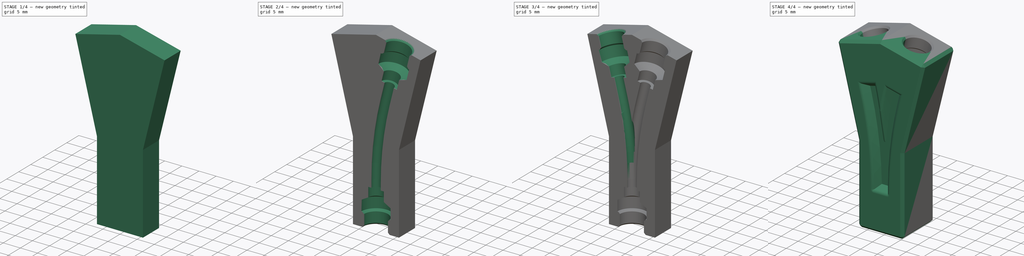
[diagram: build sequence overview — one tinted view per stage of 4, left to right]
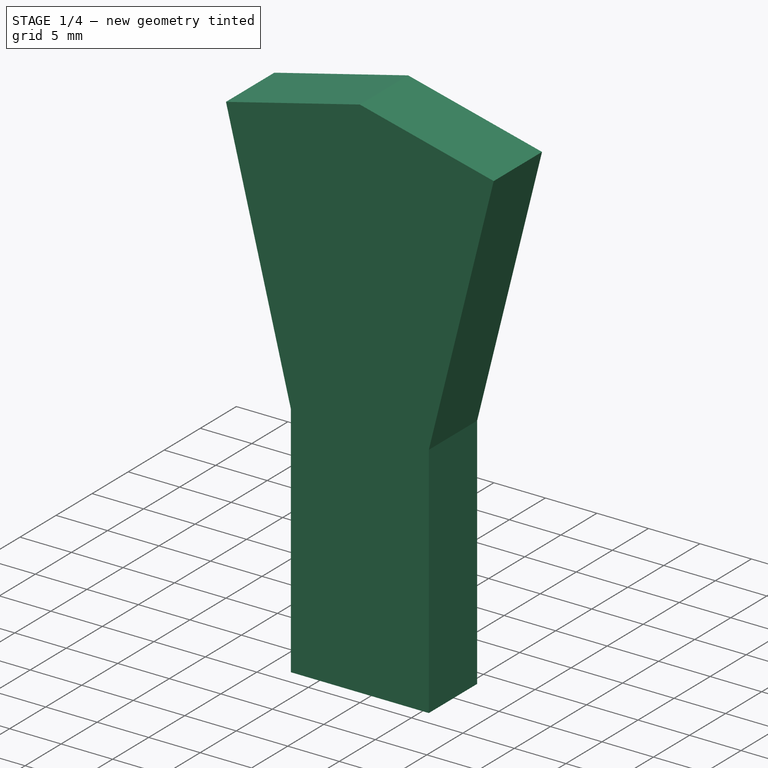
[diagram: stage 1 of 4 — iso view after this stage's code; geometry added in this stage tinted green]
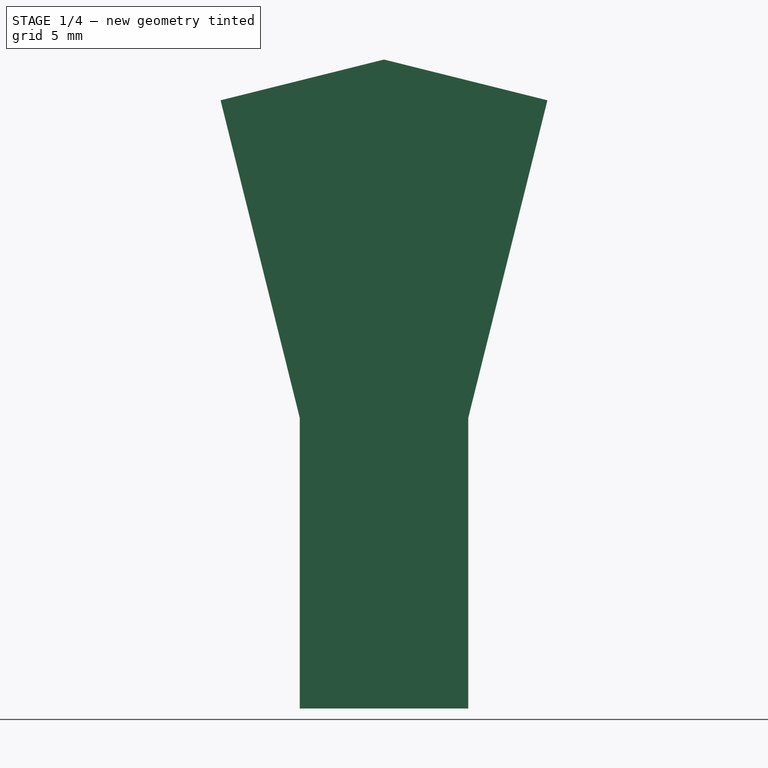
[diagram: stage 1 of 4 — front view after this stage's code; geometry added in this stage tinted green]
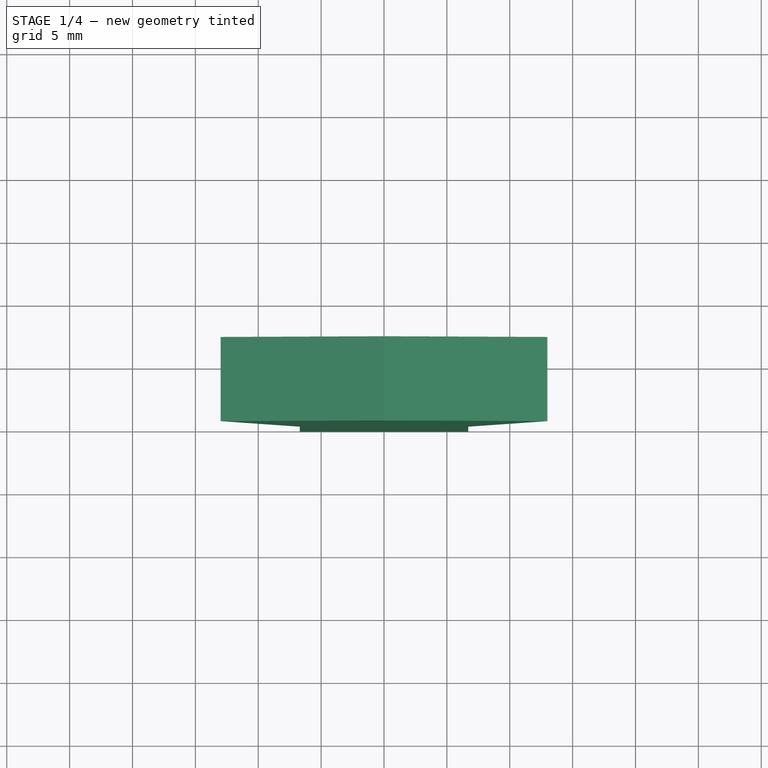
[diagram: stage 1 of 4 — top view after this stage's code; geometry added in this stage tinted green]
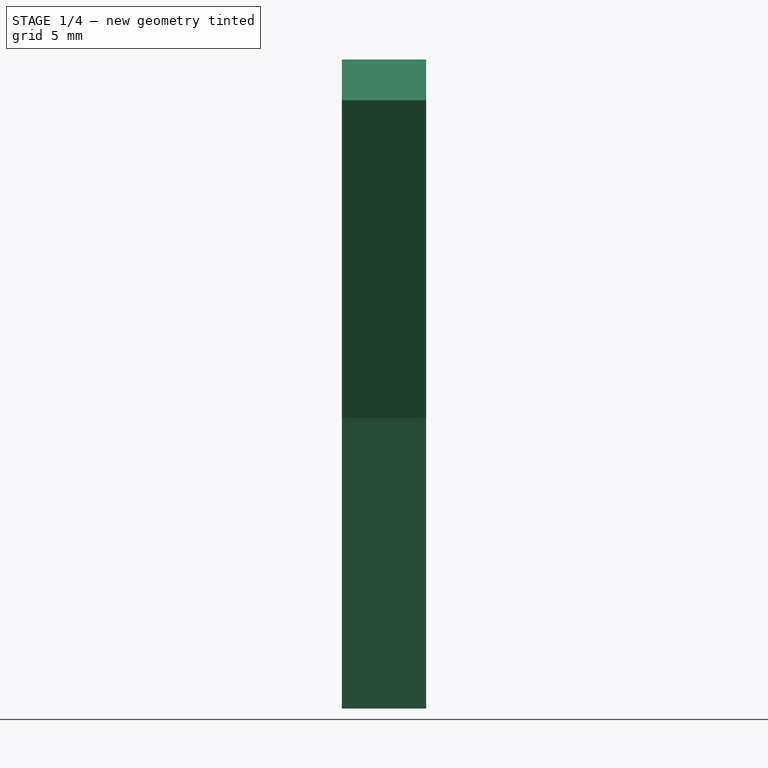
[diagram: stage 1 of 4 — right view after this stage's code; geometry added in this stage tinted green]
FCSTD DOCUMENT  (FreeCAD 1.0R39109 (Git))
Label: Y splitter
License: All rights reserved
objects: Sketcher::SketchObject×8, PartDesign::SubShapeBinder×6, App::Link×3, PartDesign::Pad×3, PartDesign::Body×2, PartDesign::Boolean×2, PartDesign::Pocket×2, PartDesign::Mirrored×2, PartDesign::Fillet×2, Part::MultiFuse×1, PartDesign::SubtractivePipe×1, PartDesign::Chamfer×1
note: 60 computed .brp shape members not serialized (recipe doc carries the construction recipe); baked Part::Feature solids carry a one-line shape summary decoded from their .brp
EXTERNAL_REF file=collet socket.FCStd obj=Cut

FEATURE [Sketcher::SketchObject] Sketch004
  ArcFitTolerance = 1e-06
  AttachmentSupport = -> [XZ_Plane001]
  FullyConstrained = true
  MakeInternals = false
  MapMode = 5
  Placement = pos=(0,0,0) rot=(1,0,0;1.5708rad)
  sketch-geometry (4):
    g0: ArcOfCircle CenterX=11.0191 CenterY=12 CenterZ=0 NormalX=0 NormalY=0 NormalZ=1 AngleXU=0 Radius=9.61914 StartAngle=2.75732 EndAngle=3.14159
    g1: ArcOfCircle CenterX=26.5657 CenterY=5.71338 CenterZ=0 NormalX=0 NormalY=0 NormalZ=1 AngleXU=0 Radius=26.3886 StartAngle=2.61799 EndAngle=2.75732
    g2: LineSegment [constr] StartX=1.4 StartY=12 StartZ=0 EndX=2.10151 EndY=15.6061 EndZ=0
    g3: LineSegment [constr] StartX=2.10151 StartY=15.6061 StartZ=0 EndX=3.71243 EndY=18.9077 EndZ=0
  constraints (8):
    c: Tangent(g0,g-5) = 1.5708
    c: Tangent(g1,g-6) = 1.5708
    c: Tangent(g0,g1) = -1.5708
    c: Coincident(g2,g0)
    c: Coincident(g2,g0)
    c: Coincident(g3,g0)
    c: Coincident(g3,g1)
    c: Equal(g3,g2)
FEATURE [Sketcher::SketchObject] Sketch005
  ArcFitTolerance = 1e-06
  AttachmentSupport = -> [XZ_Plane001]
  FullyConstrained = true
  MakeInternals = false
  MapMode = 5
  Placement = pos=(0,0,0) rot=(1,0,0;1.5708rad)
  sketch-geometry (4):
    g0: ArcOfCircle CenterX=-26.5658 CenterY=5.71328 CenterZ=0 NormalX=0 NormalY=0 NormalZ=1 AngleXU=0 Radius=26.3888 StartAngle=0.384273 EndAngle=0.523599
    g1: ArcOfCircle CenterX=-11.0191 CenterY=12 CenterZ=0 NormalX=0 NormalY=0 NormalZ=1 AngleXU=0 Radius=9.61912 StartAngle=2e-16 EndAngle=0.384273
    g2: LineSegment [constr] StartX=-1.4 StartY=12 StartZ=0 EndX=-2.10151 EndY=15.6061 EndZ=0
    g3: LineSegment [constr] StartX=-2.10151 StartY=15.6061 StartZ=0 EndX=-3.71244 EndY=18.9077 EndZ=0
  constraints (9):
    c: Tangent(g1,g-3) = 1.5708
    c: Tangent(g0,g-4) = 1.5708
    c: Coincident(g0,g1)
    c: Tangent(g1,g0,g0) = -1.5708
    c: Coincident(g2,g1)
    c: Coincident(g2,g0)
    c: Coincident(g3,g0)
    c: Coincident(g3,g0)
    c: Equal(g2,g3)
FEATURE [App::Link] Link  label="socket-Cut"
  LinkedObject = -> <external collet socket.FCStd>#Cut
FEATURE [PartDesign::SubShapeBinder] Binder
  BindCopyOnChange = 0
  BindMode = 0
  ClaimChildren = false
  Context = -> Body [Binder.]
  Fuse = false
  MakeFace = true
  OffsetFill = false
  OffsetIntersection = false
  OffsetJoinType = 0
  OffsetOpenResult = false
  PartialLoad = false
  Refine = true
  Relative = true
  Support = -> [Link[Face10]]
  _Version = 2
FEATURE [PartDesign::Pad] Pad
  Direction = (0,0,1)
  Length = 1
  Length2 = 10
  Profile = -> Binder
  Refine = true
  Suppressed = false
  Type = 0
FEATURE [Sketcher::SketchObject] Sketch
  ArcFitTolerance = 1e-06
  AttachmentSupport = -> [Pad]
  FullyConstrained = true
  MakeInternals = false
  MapMode = 5
  Placement = pos=(0,0,11) rot=(0,0,1;0rad)
  sketch-geometry (1):
    g0: Circle CenterX=0 CenterY=0 CenterZ=0 NormalX=0 NormalY=0 NormalZ=1 AngleXU=0 Radius=1.4
  constraints (2):
    c: Diameter(g0) = 2.8
    c: Coincident(g0,g-1)
FEATURE [PartDesign::Pad] Pad001
  BaseFeature = -> Pad
  Direction = (0,0,1)
  Length = 2
  Length2 = 10
  Profile = -> Sketch
  ReferenceAxis = -> Sketch [N_Axis]
  Refine = true
  Suppressed = false
  Type = 0
FEATURE [PartDesign::Body] Body
  AllowCompound = true
  Group = -> [Binder,Pad,Sketch,Pad001]
  Origin = -> Origin
  Tip = -> Pad001
FEATURE [Part::MultiFuse] Fusion  label="socket-cut-w-filament"
  Shapes = -> [Link,Body]
FEATURE [App::Link] Link001  label="socket-cut-w-filament001"
  LinkPlacement = pos=(-6.5,0,50) rot=(0,1,0;2.89725rad)
  LinkedObject = -> Fusion
  Placement = pos=(-6.5,0,50) rot=(0,1,0;2.89725rad)
FEATURE [App::Link] Link002  label="socket-cut-w-filament002"
  LinkPlacement = pos=(6.5,0,50) rot=(0,1,0;3.38594rad)
  LinkedObject = -> Fusion
  Placement = pos=(6.5,0,50) rot=(0,1,0;3.38594rad)
FEATURE [PartDesign::SubShapeBinder] Binder001
  BindCopyOnChange = 0
  BindMode = 0
  ClaimChildren = false
  Context = -> Body001 [Binder001.]
  Fuse = false
  MakeFace = true
  OffsetFill = false
  OffsetIntersection = false
  OffsetJoinType = 0
  OffsetOpenResult = false
  PartialLoad = false
  Refine = true
  Relative = true
  Support = -> [Fusion[Face1]]
  _Version = 2
FEATURE [PartDesign::SubShapeBinder] Binder002
  BindCopyOnChange = 0
  BindMode = 0
  ClaimChildren = false
  Context = -> Body001 [Binder002.]
  Fuse = false
  MakeFace = true
  OffsetFill = false
  OffsetIntersection = false
  OffsetJoinType = 0
  OffsetOpenResult = false
  PartialLoad = false
  Refine = true
  Relative = true
  Support = -> [Link001[Face1]]
  _Version = 2
FEATURE [PartDesign::SubShapeBinder] Binder003
  BindCopyOnChange = 0
  BindMode = 0
  ClaimChildren = false
  Context = -> Body001 [Binder003.]
  Fuse = false
  MakeFace = true
  OffsetFill = false
  OffsetIntersection = false
  OffsetJoinType = 0
  OffsetOpenResult = false
  PartialLoad = false
  Refine = true
  Relative = true
  Support = -> [Link002[Face1]]
  _Version = 2
FEATURE [Sketcher::SketchObject] Sketch003
  ArcFitTolerance = 1e-06
  AttachmentSupport = -> [XZ_Plane001]
  ExternalGeometry = -> [Binder002,Binder003,Binder001]
  FullyConstrained = true
  MakeInternals = false
  MapMode = 5
  Placement = pos=(0,0,0) rot=(1,0,0;1.5708rad)
  sketch-geometry (18):
    g0: LineSegment StartX=-12.9952 StartY=48.3703 StartZ=0 EndX=-10.3691 EndY=49.025 EndZ=0
    g1: LineSegment StartX=-10.3691 StartY=49.025 StartZ=0 EndX=-2.6261 EndY=50.9556 EndZ=0
    g2: LineSegment StartX=-2.6261 StartY=50.9556 StartZ=0 EndX=0 EndY=51.6103 EndZ=0
    g3: LineSegment StartX=0 StartY=51.6103 StartZ=0 EndX=2.6261 EndY=50.9556 EndZ=0
    g4: LineSegment StartX=2.6261 StartY=50.9556 StartZ=0 EndX=10.3691 EndY=49.025 EndZ=0
    g5: LineSegment StartX=10.3691 StartY=49.025 StartZ=0 EndX=12.9952 EndY=48.3703 EndZ=0
    g6: LineSegment [constr] StartX=10.3691 StartY=49.025 StartZ=0 EndX=10.3715 EndY=49.0347 EndZ=0
    g7: LineSegment [constr] StartX=2.6261 StartY=50.9556 StartZ=0 EndX=2.62852 EndY=50.9653 EndZ=0
    g8: LineSegment [constr] StartX=-2.6261 StartY=50.9556 StartZ=0 EndX=-2.62852 EndY=50.9653 EndZ=0
    g9: LineSegment [constr] StartX=-10.3691 StartY=49.025 StartZ=0 EndX=-10.3715 EndY=49.0347 EndZ=0
    g10: LineSegment StartX=-6.6965 StartY=0.01 StartZ=0 EndX=-3.99 EndY=0.01 EndZ=0
    g11: LineSegment StartX=-3.99 StartY=0.01 StartZ=0 EndX=3.99 EndY=0.01 EndZ=0
    g12: LineSegment StartX=3.99 StartY=0.01 StartZ=0 EndX=6.6965 EndY=0.01 EndZ=0
    g13: LineSegment [constr] StartX=3.99 StartY=0 StartZ=0 EndX=3.99 EndY=0.01 EndZ=0
    g14: LineSegment StartX=6.6965 StartY=0.01 StartZ=0 EndX=6.6965 EndY=23.1077 EndZ=0
    g15: LineSegment StartX=12.9952 StartY=48.3703 StartZ=0 EndX=6.6965 EndY=23.1077 EndZ=0
    g16: LineSegment StartX=-12.9952 StartY=48.3703 StartZ=0 EndX=-6.6965 EndY=23.1077 EndZ=0
    g17: LineSegment StartX=-6.6965 StartY=23.1077 StartZ=0 EndX=-6.6965 EndY=0.01 EndZ=0
  constraints (51):
    c: Coincident(g2,g1)
    c: PointOnObject(g2,g-2)
    c: Coincident(g3,g2)
    c: Coincident(g4,g3)
    c: Coincident(g5,g4)
    c: Parallel(g5,g4)
    c: Parallel(g4,g3)
    c: Parallel(g2,g1)
    c: Parallel(g1,g0)
    c: Coincident(g0,g1)
    c: Coincident(g6,g4)
    c: Coincident(g6,g-4)
    c: Coincident(g7,g3)
    c: Coincident(g7,g-4)
    c: Coincident(g8,g1)
    c: Coincident(g8,g-3)
    c: Coincident(g9,g0)
    c: Coincident(g9,g-3)
    c: Parallel(g1,g-3)
    c: Parallel(g4,g-4)
    c: Perpendicular(g1,g9)
    c: Perpendicular(g1,g8)
    c: Perpendicular(g4,g7)
    c: Perpendicular(g4,g6)
    c: Equal(g3,g5)
    c: Horizontal(g10)
    c: Coincident(g11,g10)
    c: Horizontal(g11)
    c: Coincident(g12,g11)
    c: Horizontal(g12)
    c: Vertical(g10,g-5)
    c: Vertical(g-5,g11)
    c: Equal(g12,g10)
    c: Equal(g10,g5)
    c: Coincident(g13,g-5)
    c: Coincident(g13,g11)
    c: Coincident(g14,g12)
    c: Vertical(g14)
    c: Coincident(g15,g5)
    c: Coincident(g15,g14)
    c: Perpendicular(g15,g5)
    c: Equal(g0,g2)
    c: Coincident(g16,g0)
    c: Coincident(g17,g16)
    c: Coincident(g17,g10)
    c: Vertical(g17)
    c: Equal(g17,g14)
    c: Equal(g13,g7)
    c: DistanceY(g13,g13) = 0.01
    c: Distance(g12,g12) = 2.7065
    c: Distance(g10,g12) = 13.393  'height'
FEATURE [Sketcher::SketchObject] Sketch006
  ArcFitTolerance = 1e-06
  ExternalGeometry = -> [Fusion]
  FullyConstrained = false
  MakeInternals = false
  Placement = pos=(0,0,0) rot=(1,0,0;1.5708rad)
  sketch-geometry (2):
    g0: ArcOfCircle CenterX=91.4 CenterY=13 CenterZ=0 NormalX=0 NormalY=0 NormalZ=1 AngleXU=0 Radius=90 StartAngle=2.87552 EndAngle=3.14159
    g1: LineSegment StartX=4.56711 StartY=36.6654 StartZ=0 EndX=5.75083 EndY=41.0086 EndZ=0
  constraints (3):
    c: Tangent(g0,g-4) = 1.5708
    c: Tangent(g1,g0) = 1.5708
    c: Radius(g0) = 90
FEATURE [PartDesign::Pad] Pad002
  Direction = (0,-1,2e-16)
  Length = 6.6965
  Length2 = 10
  Placement = pos=(0,0,0) rot=(1,0,0;1.5708rad)
  Profile = -> Sketch003
  ReferenceAxis = -> Sketch003 [N_Axis]
  Refine = true
  Reversed = true
  Suppressed = false
  Type = 0
  expr: Length = <<Sketch003>>.Constraints.height / 2
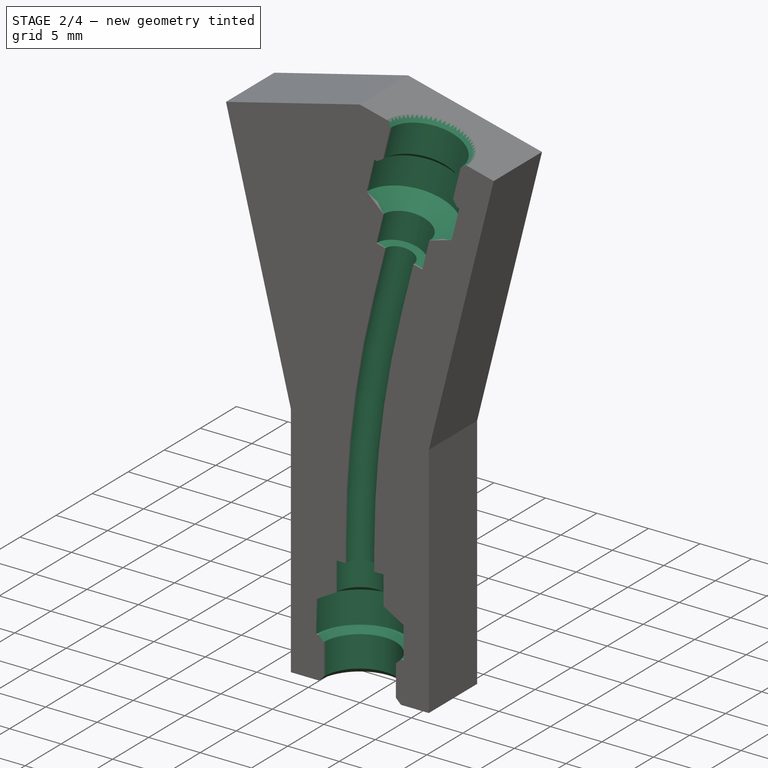
[diagram: stage 2 of 4 — iso view after this stage's code; geometry added in this stage tinted green]
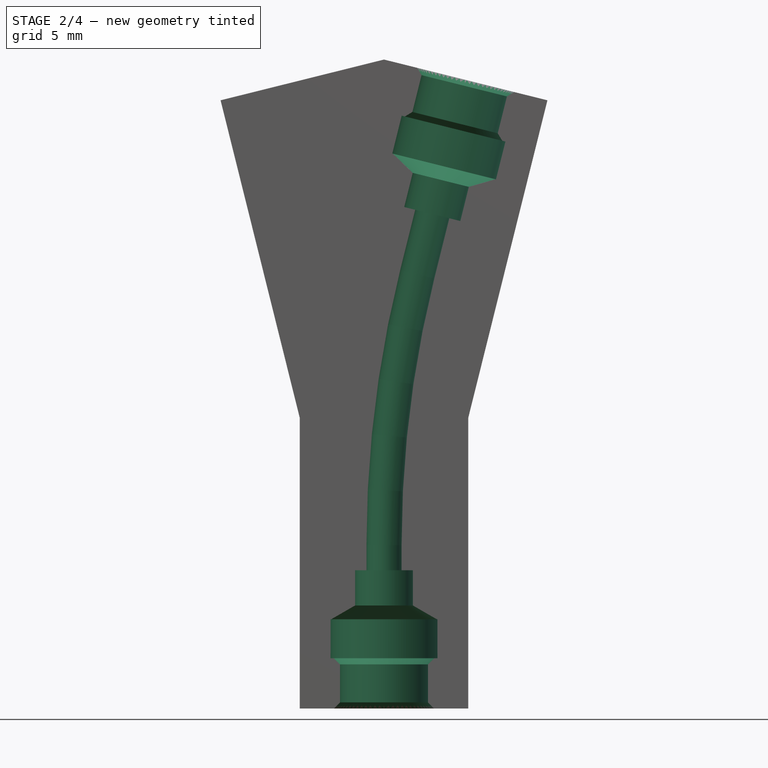
[diagram: stage 2 of 4 — front view after this stage's code; geometry added in this stage tinted green]
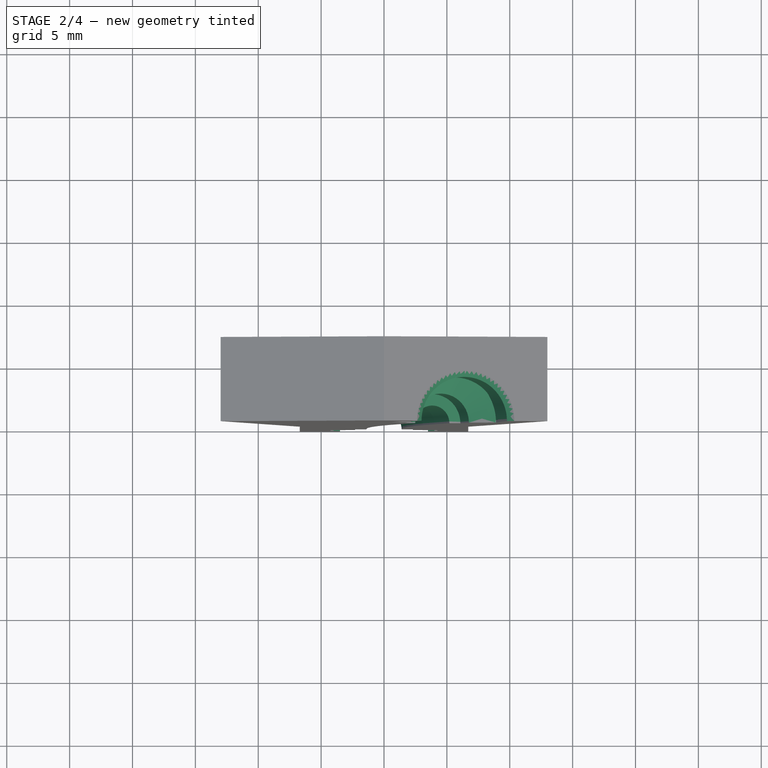
[diagram: stage 2 of 4 — top view after this stage's code; geometry added in this stage tinted green]
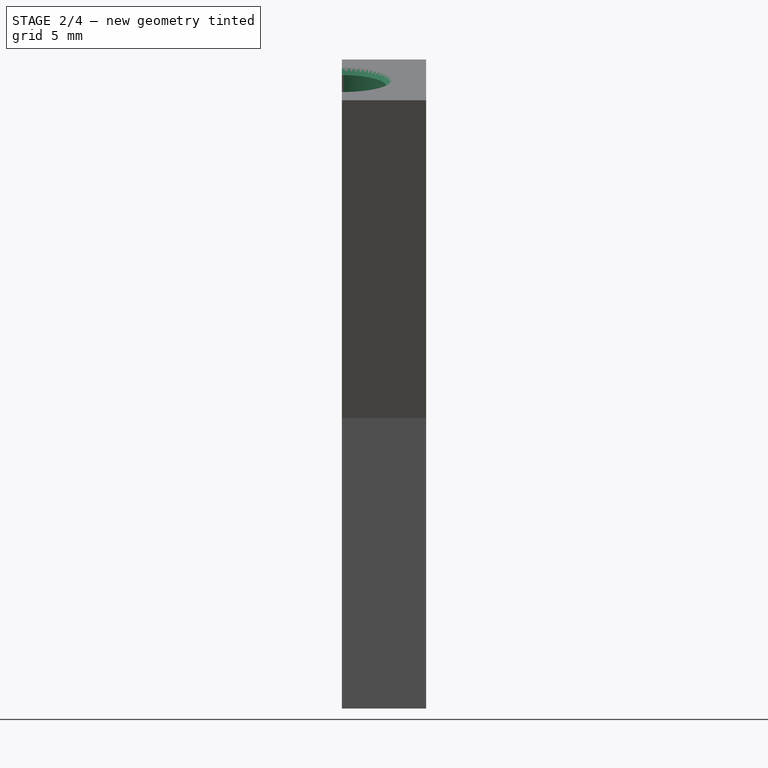
[diagram: stage 2 of 4 — right view after this stage's code; geometry added in this stage tinted green]
FEATURE [PartDesign::SubShapeBinder] Binder004
  BindCopyOnChange = 0
  BindMode = 0
  ClaimChildren = false
  Context = -> Body001 [Binder004.]
  Fuse = false
  MakeFace = true
  OffsetFill = false
  OffsetIntersection = false
  OffsetJoinType = 0
  OffsetOpenResult = false
  PartialLoad = false
  Refine = true
  Relative = true
  Support = -> [Fusion]
  _Version = 2
FEATURE [PartDesign::Boolean] Boolean
  BaseFeature = -> Pad002
  Group = -> [Binder004]
  Refine = true
  Suppressed = false
  Type = 1
  UsePlacement = true
FEATURE [PartDesign::SubShapeBinder] Binder005
  BindCopyOnChange = 0
  BindMode = 0
  ClaimChildren = false
  Context = -> Body001 [Binder005.]
  Fuse = false
  MakeFace = true
  OffsetFill = false
  OffsetIntersection = false
  OffsetJoinType = 0
  OffsetOpenResult = false
  PartialLoad = false
  Refine = true
  Relative = true
  Support = -> [Link002]
  _Version = 2
FEATURE [PartDesign::Boolean] Boolean001
  BaseFeature = -> Boolean
  Group = -> [Binder005]
  Refine = true
  Suppressed = false
  Type = 1
  UsePlacement = true
FEATURE [Sketcher::SketchObject] Sketch007
  ArcFitTolerance = 1e-06
  AttachmentSupport = -> [XZ_Plane001]
  ExternalGeometry = -> [Boolean001]
  FullyConstrained = true
  MakeInternals = false
  MapMode = 5
  Placement = pos=(0,0,0) rot=(1,0,0;1.5708rad)
  sketch-geometry (2):
    g0: ArcOfCircle CenterX=89.0171 CenterY=13 CenterZ=0 NormalX=0 NormalY=0 NormalZ=1 AngleXU=0 Radius=87.6171 StartAngle=2.89725 EndAngle=3.14159
    g1: LineSegment StartX=4.71343 StartY=37.0475 StartZ=0 EndX=4.0026 EndY=34.1965 EndZ=0
  constraints (4):
    c: Tangent(g0,g-4) = 1.5708
    c: Coincident(g1,g-3)
    c: Parallel(g-3,g1)
    c: Tangent(g1,g0) = -1.5708
FEATURE [PartDesign::SubtractivePipe] SubtractivePipe
  AuxilleryCurvelinear = true
  AuxillerySpineTangent = false
  BaseFeature = -> Boolean001
  Binormal = (0,0,0)
  Mode = 0
  Profile = -> Boolean001 [Face31]
  Refine = true
  Spine = -> Sketch007
  SpineTangent = false
  Suppressed = false
  Transformation = 0
  Transition = 0
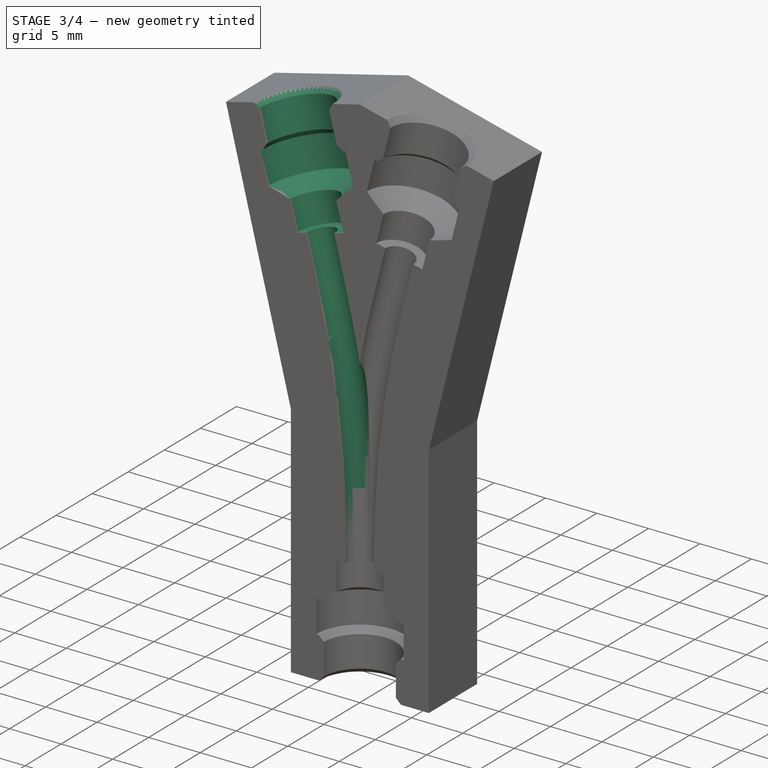
[diagram: stage 3 of 4 — iso view after this stage's code; geometry added in this stage tinted green]
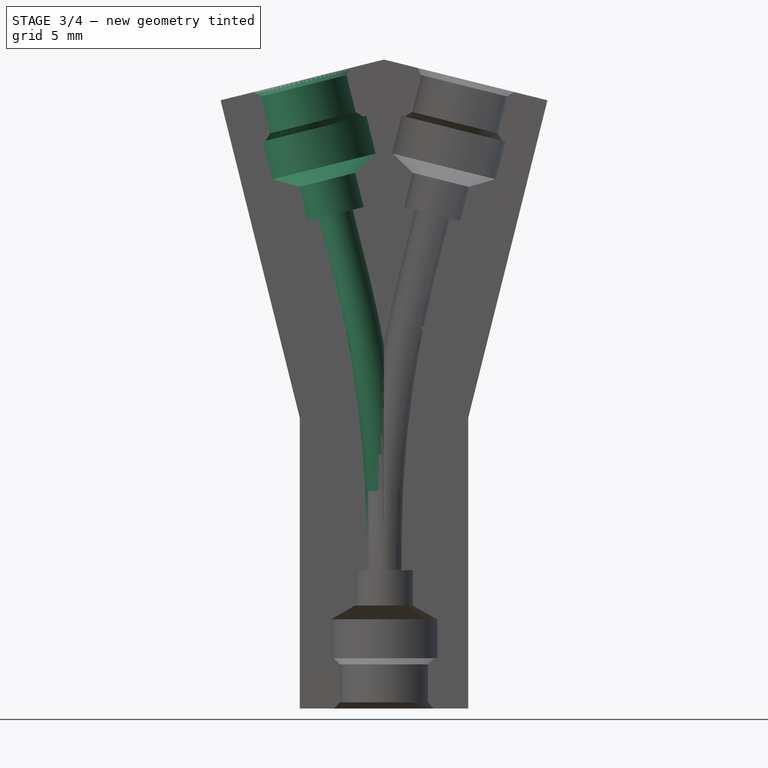
[diagram: stage 3 of 4 — front view after this stage's code; geometry added in this stage tinted green]
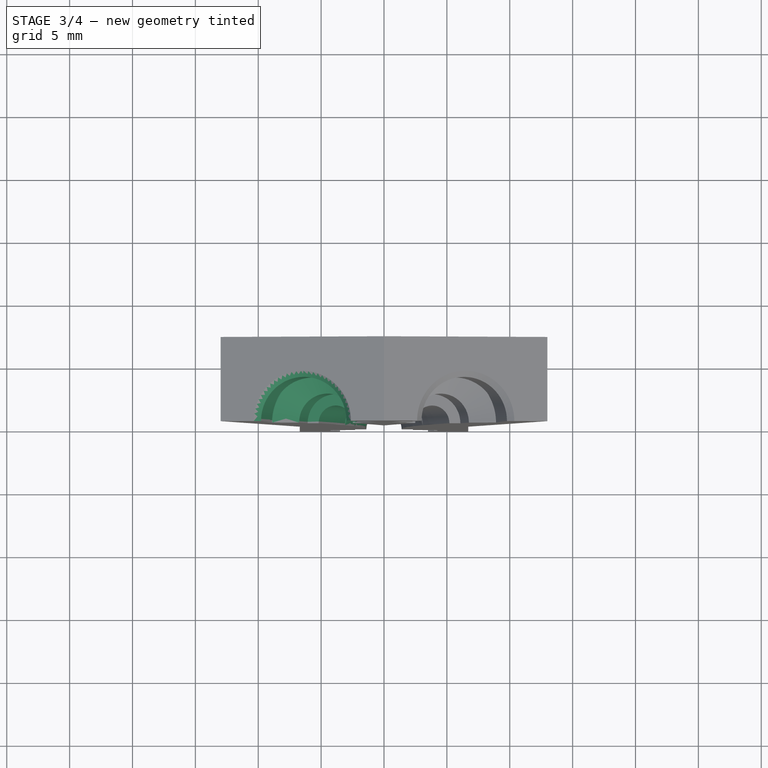
[diagram: stage 3 of 4 — top view after this stage's code; geometry added in this stage tinted green]
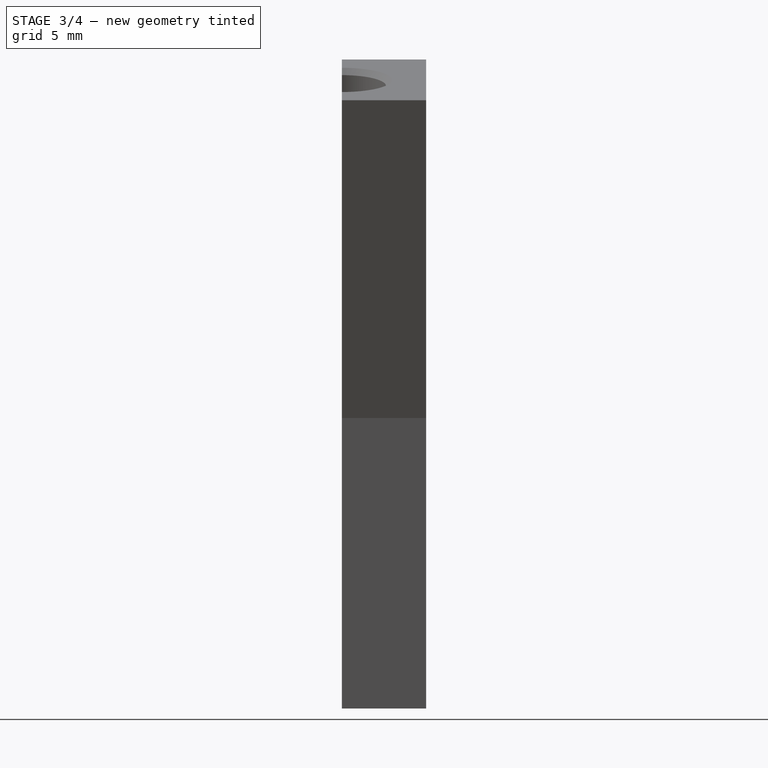
[diagram: stage 3 of 4 — right view after this stage's code; geometry added in this stage tinted green]
FEATURE [Sketcher::SketchObject] Sketch008
  ArcFitTolerance = 1e-06
  AttachmentSupport = -> [XZ_Plane001]
  FullyConstrained = false
  MakeInternals = false
  MapMode = 5
  Placement = pos=(0,0,0) rot=(1,0,0;1.5708rad)
  sketch-geometry (4):
    g0: LineSegment StartX=0 StartY=-5.19196 StartZ=0 EndX=0 EndY=56.8249 EndZ=0
    g1: LineSegment StartX=0 StartY=56.8249 StartZ=0 EndX=-56.2911 EndY=56.8249 EndZ=0
    g2: LineSegment StartX=-56.2911 StartY=56.8249 StartZ=0 EndX=-56.2911 EndY=-5.19196 EndZ=0
    g3: LineSegment StartX=-56.2911 StartY=-5.19196 StartZ=0 EndX=0 EndY=-5.19196 EndZ=0
  constraints (9):
    c: Coincident(g0,g1)
    c: Coincident(g1,g2)
    c: Coincident(g2,g3)
    c: Coincident(g3,g0)
    c: Vertical(g0)
    c: Vertical(g2)
    c: Horizontal(g1)
    c: Horizontal(g3)
    c: PointOnObject(g0,g-2)
FEATURE [PartDesign::Pocket] Pocket
  BaseFeature = -> SubtractivePipe
  Direction = (0,1,-2e-16)
  Length = 5
  Length2 = 5
  Midplane = true
  Profile = -> Sketch008
  ReferenceAxis = -> Sketch008 [N_Axis]
  Refine = true
  Suppressed = false
  Type = 1
FEATURE [PartDesign::Mirrored] Mirrored
  BaseFeature = -> Pocket
  MirrorPlane = -> YZ_Plane001
  Refine = true
  Suppressed = false
  TransformMode = 1
FEATURE [Sketcher::SketchObject] Sketch009
  ArcFitTolerance = 1e-06
  AttachmentSupport = -> [Mirrored]
  ExternalGeometry = -> [Mirrored]
  FullyConstrained = true
  MakeInternals = false
  MapMode = 5
  Placement = pos=(0,6.6965,-1.5e-15) rot=(0,0.707107,0.707107;3.14159rad)
  sketch-geometry (9):
    g0: LineSegment StartX=-1.60718 StartY=39.8832 StartZ=0 EndX=-6.07054 EndY=38.7703 EndZ=0
    g1: ArcOfCircle CenterX=-105.306 CenterY=11 CenterZ=0 NormalX=0 NormalY=0 NormalZ=1 AngleXU=0 Radius=103.006 StartAngle=0 EndAngle=0.244346
    g2: ArcOfCircle CenterX=105.306 CenterY=11 CenterZ=0 NormalX=0 NormalY=0 NormalZ=1 AngleXU=0 Radius=103.006 StartAngle=2.89725 EndAngle=3.14159
    g3: LineSegment StartX=5.35971 StartY=35.9194 StartZ=0 EndX=6.07054 EndY=38.7703 EndZ=0
    g4: LineSegment StartX=-5.35971 StartY=35.9194 StartZ=0 EndX=-6.07054 EndY=38.7703 EndZ=0
    g5: LineSegment StartX=1.60718 StartY=39.8832 StartZ=0 EndX=6.07054 EndY=38.7703 EndZ=0
    g6: ArcOfCircle CenterX=-101.553 CenterY=14.9638 CenterZ=0 NormalX=0 NormalY=0 NormalZ=1 AngleXU=0 Radius=103.006 StartAngle=0.168135 EndAngle=0.244346
    g7: ArcOfCircle CenterX=101.553 CenterY=14.9638 CenterZ=0 NormalX=0 NormalY=0 NormalZ=1 AngleXU=0 Radius=103.006 StartAngle=2.89725 EndAngle=2.97346
    g8: LineSegment StartX=-2.3 StartY=11 StartZ=0 EndX=2.3 EndY=11 EndZ=0
  constraints (21):
    c: Coincident(g0,g-7)
    c: Coincident(g0,g-3)
    c: Tangent(g-6,g2) = -1.5708
    c: Tangent(g-9,g1) = 1.5708
    c: Coincident(g3,g-4)
    c: Coincident(g4,g0)
    c: Coincident(g5,g-8)
    c: Coincident(g5,g3)
    c: Tangent(g3,g2) = 1.5708
    c: Tangent(g4,g1) = -1.5708
    c: Parallel(g-3,g4)
    c: Coincident(g6,g0)
    c: Coincident(g7,g5)
    c: Coincident(g7,g6)
    c: PointOnObject(g6,g-2)
    c: Equal(g6,g7)
    c: Equal(g7,g1)
    c: Coincident(g8,g1)
    c: Coincident(g8,g2)
    c: Parallel(g3,g-4)
    c: Perpendicular(g7,g5)
FEATURE [PartDesign::Pocket] Pocket001
  BaseFeature = -> Mirrored
  Direction = (0,-1,2e-16)
  Length = 2
  Length2 = 5
  Profile = -> Sketch009
  ReferenceAxis = -> Sketch009 [N_Axis]
  Refine = true
  Suppressed = false
  TaperAngle = -35
  Type = 0
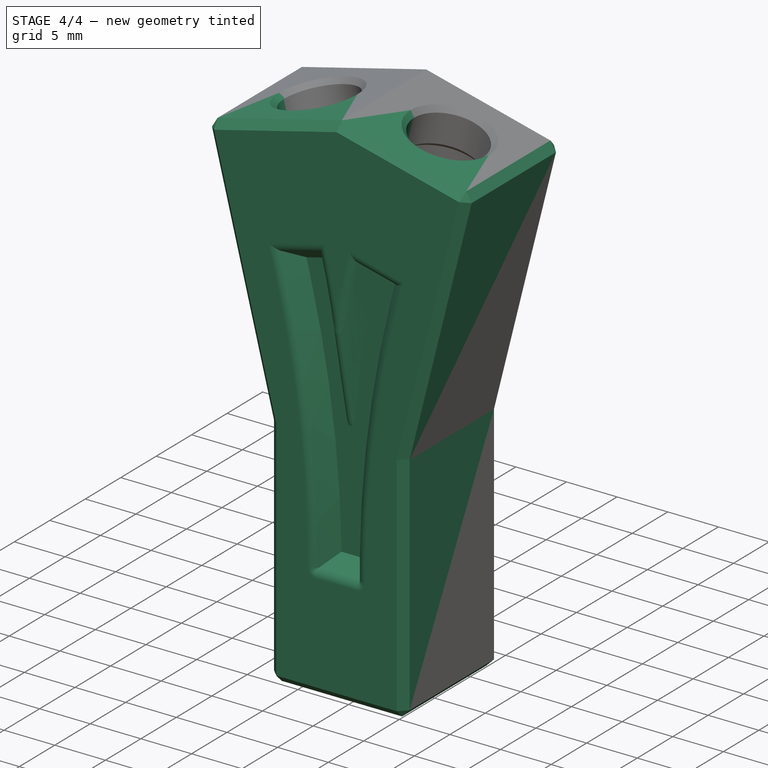
[diagram: stage 4 of 4 — iso view after this stage's code; geometry added in this stage tinted green]
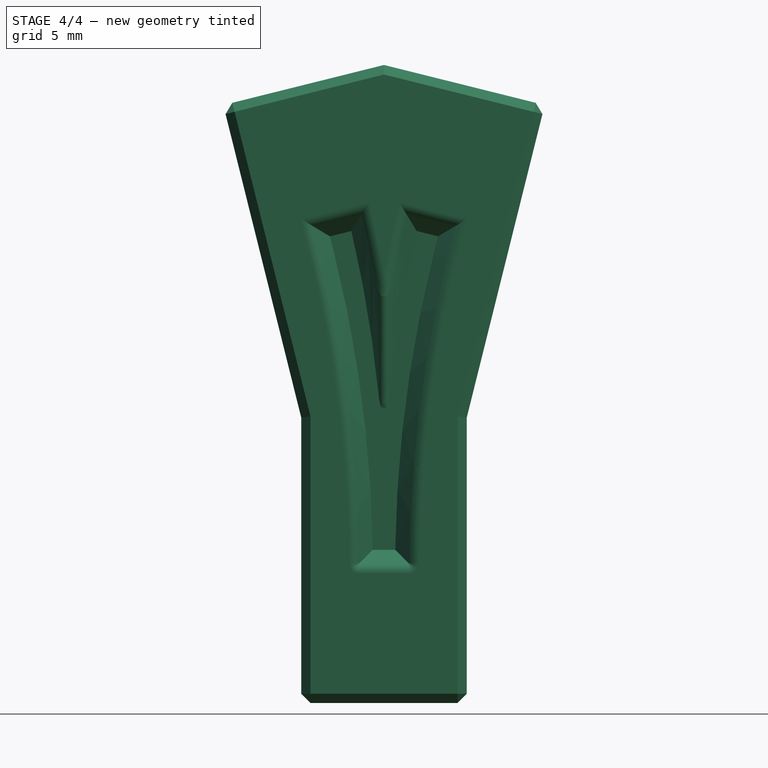
[diagram: stage 4 of 4 — front view after this stage's code; geometry added in this stage tinted green]
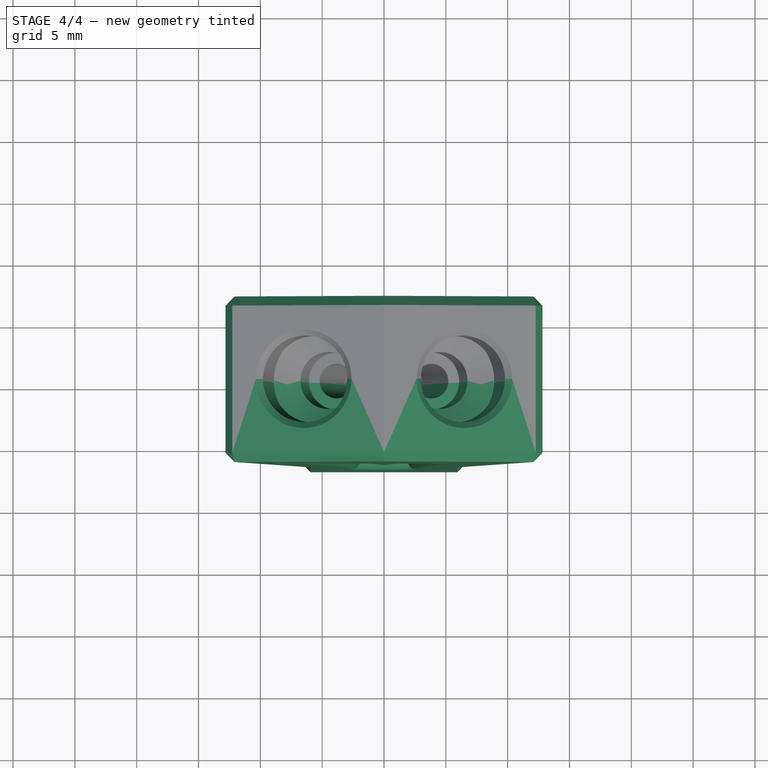
[diagram: stage 4 of 4 — top view after this stage's code; geometry added in this stage tinted green]
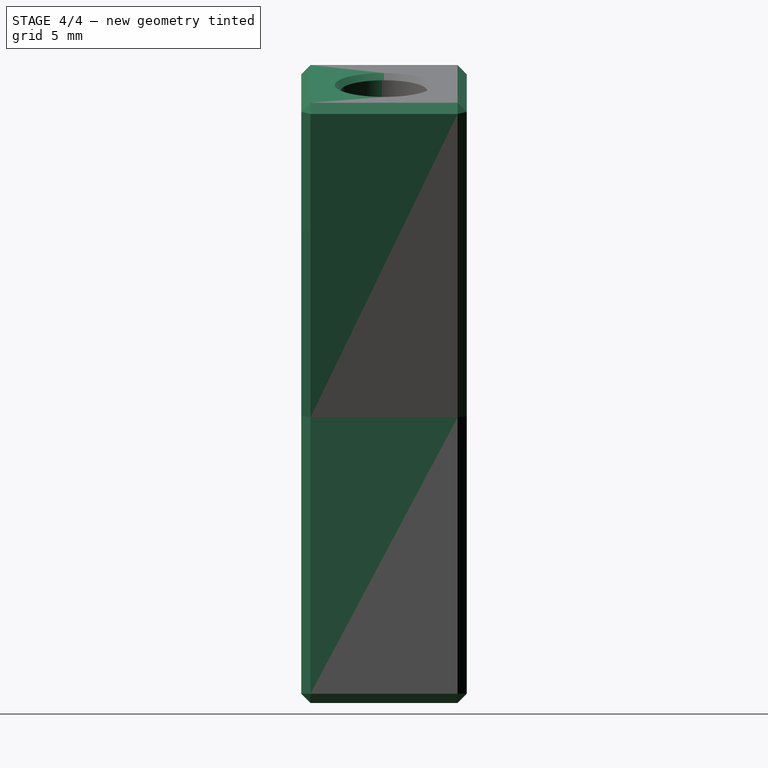
[diagram: stage 4 of 4 — right view after this stage's code; geometry added in this stage tinted green]
FEATURE [PartDesign::Fillet] Fillet
  Base = -> Pocket001 [Edge45,Edge47,Edge39,Edge41,Edge43,Edge44,Edge40]
  BaseFeature = -> Pocket001
  Radius = 1
  Refine = true
  SupportTransform = false
  Suppressed = false
  UseAllEdges = false
FEATURE [PartDesign::Mirrored] Mirrored001
  BaseFeature = -> Fillet
  MirrorPlane = -> XZ_Plane001
  Originals = -> [Fillet]
  Refine = true
  Suppressed = false
  TransformMode = 1
FEATURE [PartDesign::Chamfer] Chamfer
  Angle = 45
  Base = -> Mirrored001 [Edge130,Edge128,Edge132,Edge131,Edge129,Edge127,Edge111,Edge109,Edge110,Edge183,Edge59,Edge61,Edge63,Edge65,Edge64,Edge62,Edge60,Edge182]
  BaseFeature = -> Mirrored001
  ChamferType = 0
  FlipDirection = false
  Refine = true
  Size = 0.75
  Size2 = 1
  SupportTransform = false
  Suppressed = false
  UseAllEdges = false
FEATURE [PartDesign::Fillet] Fillet001
  Base = -> Chamfer [Edge216,Edge97]
  BaseFeature = -> Chamfer
  Radius = 0.5
  Refine = true
  SupportTransform = false
  Suppressed = false
  UseAllEdges = false
FEATURE [PartDesign::Body] Body001  label="Y splitter"
  AllowCompound = true
  Group = -> [Sketch003,Sketch004,Sketch005,Binder001,Binder002,Binder003,Pad002,Boolean,Boolean001,Sketch007,SubtractivePipe,Sketch008,Pocket,Mirrored,Sketch009,Pocket001,Fillet,Mirrored001,Chamfer,Fillet001]
  Origin = -> Origin001
  Tip = -> Fillet001
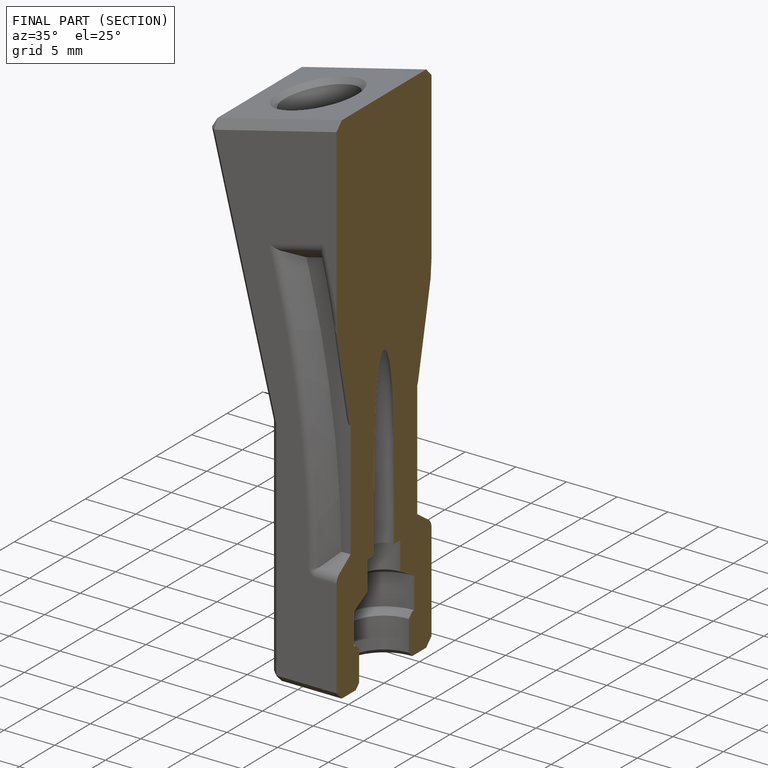
[diagram: finished part — half-section view (interior)]
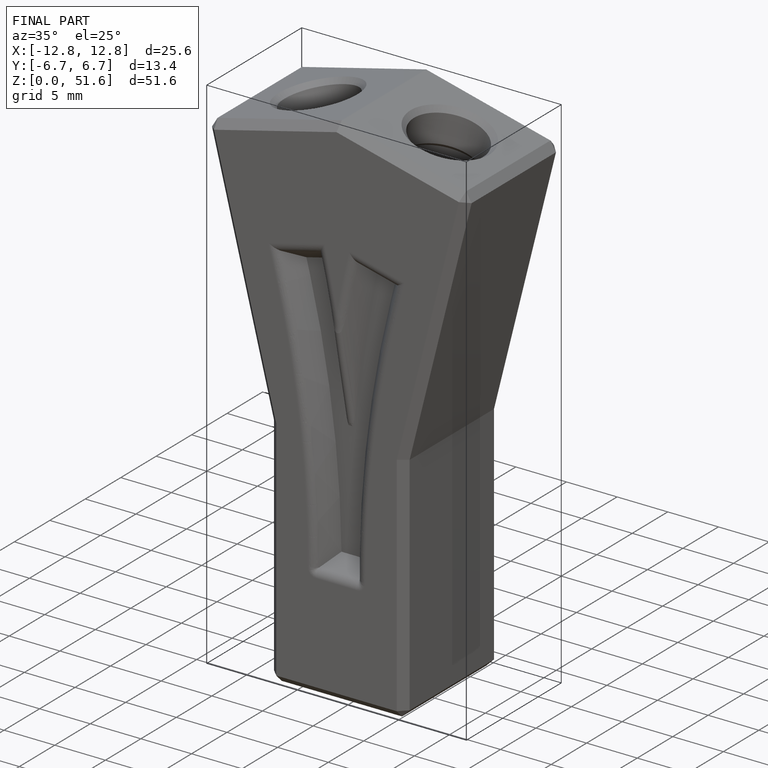
[diagram: finished part — iso view with bounding-box wireframe]
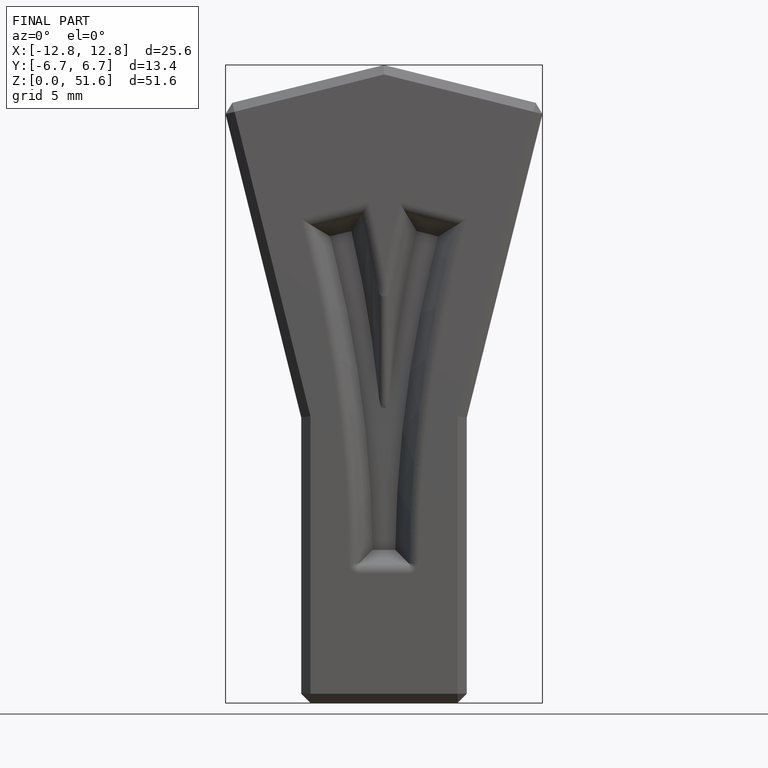
[diagram: finished part — front view with bounding-box wireframe]
